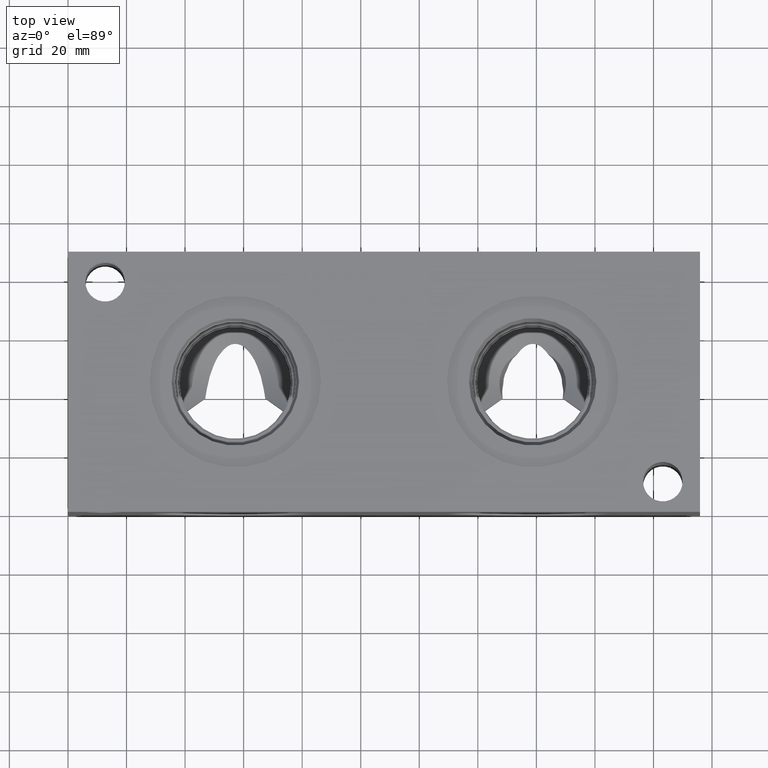
[diagram: clean part render]
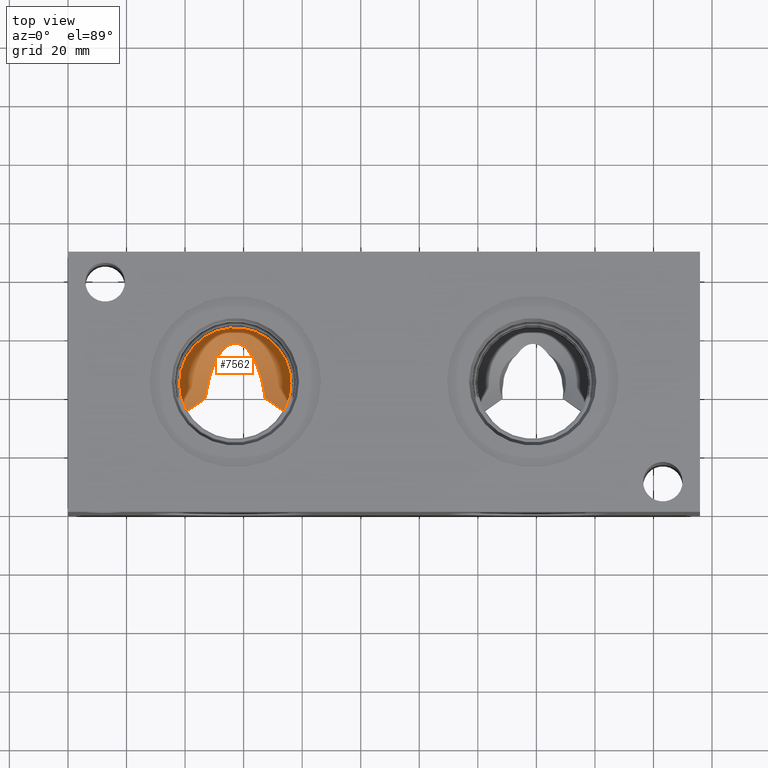
[diagram: same view with one face highlighted and labeled with its STEP entity id]
A machine part, top view. The second image highlights one B-rep face of the part: STEP entity #7562.
In plain terms, the highlighted conical surface has half-angle 60 deg.
Its self-contained STEP definition (entity closure, byte-faithful):
#30=CONICAL_SURFACE('',#7946,9.525,1.0471975511966);
#163=CIRCLE('',#7921,9.081735594971);
#164=CIRCLE('',#7924,9.081735594971);
#176=CIRCLE('',#7947,19.05);
#177=CIRCLE('',#7948,19.05);
#496=B_SPLINE_CURVE_WITH_KNOTS('',3,(#12746,#12747,#12748,#12749),
 .UNSPECIFIED.,.F.,.F.,(4,4),(5.30372247944243,6.11986890895593),
 .UNSPECIFIED.);
#497=B_SPLINE_CURVE_WITH_KNOTS('',3,(#12759,#12760,#12761,#12762),
 .UNSPECIFIED.,.F.,.F.,(4,4),(9.35745854840135,9.35814232735802),
 .UNSPECIFIED.);
#498=B_SPLINE_CURVE_WITH_KNOTS('',3,(#12765,#12766,#12767,#12768),
 .UNSPECIFIED.,.F.,.F.,(4,4),(16.0128971196868,16.0135808986435),
 .UNSPECIFIED.);
#499=B_SPLINE_CURVE_WITH_KNOTS('',3,(#12773,#12774,#12775,#12776,#12777,
#12778),.UNSPECIFIED.,.F.,.F.,(4,2,4),(1.89094924522375,1.92706562017459,
2.71446612113867),.UNSPECIFIED.);
#502=B_SPLINE_CURVE_WITH_KNOTS('',3,(#12921,#12922,#12923,#12924,#12925,
#12926,#12927,#12928,#12929,#12930,#12931,#12932,#12933,#12934,#12935,#12936,
#12937,#12938,#12939,#12940,#12941,#12942,#12943,#12944,#12945,#12946),
 .UNSPECIFIED.,.F.,.F.,(4,2,2,2,2,2,2,2,2,2,2,2,4),(4.38456108506518,4.50151278529037,
4.91366254572093,5.14021584468858,5.36676914365624,5.54670107266124,5.72663300166625,
5.90656493067126,6.08649685967626,6.31305015864392,6.53960345761157,6.95175321804213,
7.06871635695408),.UNSPECIFIED.);
#503=B_SPLINE_CURVE_WITH_KNOTS('',3,(#12947,#12948,#12949,#12950,#12951,
#12952,#12953,#12954),.UNSPECIFIED.,.F.,.F.,(4,2,2,4),(3.53121967246044,
3.54113211159211,4.08936302485981,4.16142711207634),.UNSPECIFIED.);
#504=B_SPLINE_CURVE_WITH_KNOTS('',3,(#12958,#12959,#12960,#12961,#12962,
#12963,#12964,#12965),.UNSPECIFIED.,.F.,.F.,(4,2,2,4),(7.29184710068169,
7.3639029784727,7.91213389174039,7.92204633087206),.UNSPECIFIED.);
#936=FACE_OUTER_BOUND('',#1360,.T.);
#1360=EDGE_LOOP('',(#6407,#6408,#6409,#6410,#6411,#6412,#6413,#6414,#6415,
#6416,#6417));
#3403=VERTEX_POINT('',#12743);
#3404=VERTEX_POINT('',#12745);
#3407=VERTEX_POINT('',#12756);
#3408=VERTEX_POINT('',#12758);
#3409=VERTEX_POINT('',#12763);
#3410=VERTEX_POINT('',#12771);
#3438=VERTEX_POINT('',#12873);
#3439=VERTEX_POINT('',#12875);
#3440=VERTEX_POINT('',#12879);
#3441=VERTEX_POINT('',#12881);
#3454=VERTEX_POINT('',#12955);
#4387=EDGE_CURVE('',#3404,#3403,#496,.T.);
#4392=EDGE_CURVE('',#3407,#3408,#497,.T.);
#4394=EDGE_CURVE('',#3409,#3403,#498,.T.);
#4397=EDGE_CURVE('',#3407,#3410,#499,.T.);
#4442=EDGE_CURVE('',#3438,#3439,#163,.T.);
#4444=EDGE_CURVE('',#3441,#3440,#164,.T.);
#4463=EDGE_CURVE('',#3441,#3439,#502,.T.);
#4464=EDGE_CURVE('',#3404,#3440,#503,.T.);
#4465=EDGE_CURVE('',#3409,#3454,#176,.T.);
#4466=EDGE_CURVE('',#3454,#3408,#177,.T.);
#4467=EDGE_CURVE('',#3438,#3410,#504,.T.);
#6407=ORIENTED_EDGE('',*,*,#4442,.T.);
#6408=ORIENTED_EDGE('',*,*,#4463,.F.);
#6409=ORIENTED_EDGE('',*,*,#4444,.T.);
#6410=ORIENTED_EDGE('',*,*,#4464,.F.);
#6411=ORIENTED_EDGE('',*,*,#4387,.T.);
#6412=ORIENTED_EDGE('',*,*,#4394,.F.);
#6413=ORIENTED_EDGE('',*,*,#4465,.T.);
#6414=ORIENTED_EDGE('',*,*,#4466,.T.);
#6415=ORIENTED_EDGE('',*,*,#4392,.F.);
#6416=ORIENTED_EDGE('',*,*,#4397,.T.);
#6417=ORIENTED_EDGE('',*,*,#4467,.F.);
#7562=ADVANCED_FACE('',(#936),#30,.F.);
#7921=AXIS2_PLACEMENT_3D('',#12877,#9303,#9304);
#7924=AXIS2_PLACEMENT_3D('',#12882,#9309,#9310);
#7946=AXIS2_PLACEMENT_3D('',#12920,#9357,#9358);
#7947=AXIS2_PLACEMENT_3D('',#12956,#9359,#9360);
#7948=AXIS2_PLACEMENT_3D('',#12957,#9361,#9362);
#9303=DIRECTION('center_axis',(0.,0.,-1.));
#9304=DIRECTION('ref_axis',(1.,0.,0.));
#9309=DIRECTION('center_axis',(0.,0.,-1.));
#9310=DIRECTION('ref_axis',(1.,0.,0.));
#9357=DIRECTION('center_axis',(0.,0.,1.));
#9358=DIRECTION('ref_axis',(2.83276944882399E-16,1.,0.));
#9359=DIRECTION('center_axis',(0.,0.,1.));
#9360=DIRECTION('ref_axis',(1.,0.,0.));
#9361=DIRECTION('center_axis',(0.,0.,1.));
#9362=DIRECTION('ref_axis',(1.,0.,0.));
#12743=CARTESIAN_POINT('',(73.7185957301253,35.05432,53.8512837172205));
#12745=CARTESIAN_POINT('',(67.3958037857566,39.47566701403,49.430082525144));
#12746=CARTESIAN_POINT('Ctrl Pts',(67.3958037857566,39.47566701403,49.430082525144));
#12747=CARTESIAN_POINT('Ctrl Pts',(69.4822902116838,38.0264989419708,50.8791685903675));
#12748=CARTESIAN_POINT('Ctrl Pts',(71.5997748368577,36.5422065438612,52.3634257738181));
#12749=CARTESIAN_POINT('Ctrl Pts',(73.7185957301253,35.05432,53.8512837172205));
#12756=CARTESIAN_POINT('',(40.5814042698747,35.05432,53.8512837172205));
#12758=CARTESIAN_POINT('',(40.5823101276732,35.04712,53.85288));
#12759=CARTESIAN_POINT('Ctrl Pts',(40.5814042698747,35.05432,53.8512837172205));
#12760=CARTESIAN_POINT('Ctrl Pts',(40.5817061004687,35.0519199619181,53.8518156561812));
#12761=CARTESIAN_POINT('Ctrl Pts',(40.582008053364,35.0495199595302,53.8523477510005));
#12762=CARTESIAN_POINT('Ctrl Pts',(40.5823101276732,35.04712,53.85288));
#12763=CARTESIAN_POINT('',(73.7176898723268,35.04712,53.85288));
#12765=CARTESIAN_POINT('Ctrl Pts',(73.7176898723268,35.04712,53.85288));
#12766=CARTESIAN_POINT('Ctrl Pts',(73.7179919466303,35.0495199594856,53.8523477510104));
#12767=CARTESIAN_POINT('Ctrl Pts',(73.7182938995368,35.0519199619617,53.8518156561716));
#12768=CARTESIAN_POINT('Ctrl Pts',(73.7185957301253,35.05432,53.8512837172205));
#12771=CARTESIAN_POINT('',(46.9041962142434,39.47566701403,49.430082525144));
#12773=CARTESIAN_POINT('Ctrl Pts',(40.5814042698747,35.05432,53.8512837172205));
#12774=CARTESIAN_POINT('Ctrl Pts',(40.6743579970828,35.1195943232588,53.786010648678));
#12775=CARTESIAN_POINT('Ctrl Pts',(40.7673128170111,35.1848618570308,53.7207443926712));
#12776=CARTESIAN_POINT('Ctrl Pts',(42.8868110616372,36.6728705494915,52.2327653898446));
#12777=CARTESIAN_POINT('Ctrl Pts',(44.9084045670406,38.0894909538031,50.8161801431843));
#12778=CARTESIAN_POINT('Ctrl Pts',(46.9041962142435,39.47566701403,49.430082525144));
#12873=CARTESIAN_POINT('',(48.1740117608366,45.8318670512624,48.0976998624032));
#12875=CARTESIAN_POINT('',(48.8330169453899,48.0976998624214,48.097699862404));
#12877=CARTESIAN_POINT('Origin',(57.15,44.45,48.0976998624031));
#12879=CARTESIAN_POINT('',(66.1259882391634,45.8318670512623,48.0976998624032));
#12881=CARTESIAN_POINT('',(65.4669830546101,48.0976998624215,48.097699862404));
#12882=CARTESIAN_POINT('Origin',(57.15,44.45,48.0976998624031));
#12920=CARTESIAN_POINT('Origin',(57.15,44.45,48.3536186859688));
#12921=CARTESIAN_POINT('Ctrl Pts',(65.466983054587,48.097699862497,48.097699862409));
#12922=CARTESIAN_POINT('Ctrl Pts',(65.3388476259873,48.4980353810278,48.1227858724786));
#12923=CARTESIAN_POINT('Ctrl Pts',(65.2039758812084,48.8983002910826,48.1610879924586));
#12924=CARTESIAN_POINT('Ctrl Pts',(64.5643631596212,50.6922672691865,48.387002462917));
#12925=CARTESIAN_POINT('Ctrl Pts',(63.9810931960998,52.0434753410027,48.7107598981071));
#12926=CARTESIAN_POINT('Ctrl Pts',(62.988857043947,53.8531544772588,49.233457961355));
#12927=CARTESIAN_POINT('Ctrl Pts',(62.5681886380495,54.5345754277342,49.4514800096387));
#12928=CARTESIAN_POINT('Ctrl Pts',(61.613184818603,55.804961032585,49.8868014309831));
#12929=CARTESIAN_POINT('Ctrl Pts',(61.0772214087641,56.3931545868473,50.1027767301576));
#12930=CARTESIAN_POINT('Ctrl Pts',(60.0691735823156,57.2402050411951,50.4225214238731));
#12931=CARTESIAN_POINT('Ctrl Pts',(59.5359737376321,57.599943189092,50.5624644652728));
#12932=CARTESIAN_POINT('Ctrl Pts',(58.377386322299,58.1008503639968,50.7596943359737));
#12933=CARTESIAN_POINT('Ctrl Pts',(57.7497730966834,58.2377485844471,50.8147177286871));
#12934=CARTESIAN_POINT('Ctrl Pts',(56.5502269033166,58.2377485844471,50.8147177286871));
#12935=CARTESIAN_POINT('Ctrl Pts',(55.922613677701,58.1008503639968,50.7596943359737));
#12936=CARTESIAN_POINT('Ctrl Pts',(54.7640262623679,57.599943189092,50.5624644652728));
#12937=CARTESIAN_POINT('Ctrl Pts',(54.2308264176844,57.2402050411951,50.4225214238731));
#12938=CARTESIAN_POINT('Ctrl Pts',(53.2227785912359,56.3931545868473,50.1027767301576));
#12939=CARTESIAN_POINT('Ctrl Pts',(52.686815181397,55.804961032585,49.8868014309831));
#12940=CARTESIAN_POINT('Ctrl Pts',(51.7318113619505,54.5345754277342,49.4514800096388));
#12941=CARTESIAN_POINT('Ctrl Pts',(51.311142956053,53.8531544772588,49.233457961355));
#12942=CARTESIAN_POINT('Ctrl Pts',(50.3189068039002,52.0434753410027,48.7107598981071));
#12943=CARTESIAN_POINT('Ctrl Pts',(49.7356368403788,50.6922672691865,48.387002462917));
#12944=CARTESIAN_POINT('Ctrl Pts',(49.096010290953,48.8982615071672,48.1610831083956));
#12945=CARTESIAN_POINT('Ctrl Pts',(48.9611449483557,48.4980121809345,48.1227844187019));
#12946=CARTESIAN_POINT('Ctrl Pts',(48.8330169453889,48.0976998624218,48.0976998624043));
#12947=CARTESIAN_POINT('Ctrl Pts',(67.3958037857566,39.47566701403,49.430082525144));
#12948=CARTESIAN_POINT('Ctrl Pts',(67.3910465648902,39.5096435426244,49.4190443448965));
#12949=CARTESIAN_POINT('Ctrl Pts',(67.3862571540522,39.5436275389631,49.4080492626906));
#12950=CARTESIAN_POINT('Ctrl Pts',(67.1147673610117,41.4575477473227,48.7914333575254));
#12951=CARTESIAN_POINT('Ctrl Pts',(66.7451524861651,43.3607715628299,48.332792563974));
#12952=CARTESIAN_POINT('Ctrl Pts',(66.2490822426264,45.3579680991156,48.1320518404057));
#12953=CARTESIAN_POINT('Ctrl Pts',(66.1888440601308,45.5935644732268,48.11263248915));
#12954=CARTESIAN_POINT('Ctrl Pts',(66.1259882391635,45.8318670512623,48.0976998624032));
#12955=CARTESIAN_POINT('',(38.1,44.45,53.85288));
#12956=CARTESIAN_POINT('Origin',(57.15,44.45,53.85288));
#12957=CARTESIAN_POINT('Origin',(57.15,44.45,53.85288));
#12958=CARTESIAN_POINT('Ctrl Pts',(48.1740117608665,45.8318670513762,48.0976998623961));
#12959=CARTESIAN_POINT('Ctrl Pts',(48.1111505720598,45.5935441224836,48.1126337643763));
#12960=CARTESIAN_POINT('Ctrl Pts',(48.0509111920269,45.3579416667951,48.1320544971513));
#12961=CARTESIAN_POINT('Ctrl Pts',(47.5548475138349,43.3607715628299,48.332792563974));
#12962=CARTESIAN_POINT('Ctrl Pts',(47.1852326389883,41.4575477473228,48.7914333575254));
#12963=CARTESIAN_POINT('Ctrl Pts',(46.9137428459478,39.5436275389631,49.4080492626906));
#12964=CARTESIAN_POINT('Ctrl Pts',(46.9089534351098,39.5096435426244,49.4190443448965));
#12965=CARTESIAN_POINT('Ctrl Pts',(46.9041962142434,39.47566701403,49.430082525144));